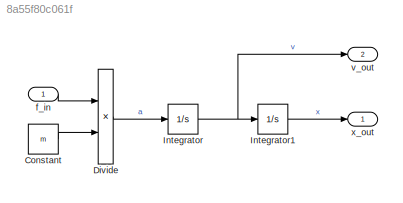
MODEL slx_8a55f80c061f
KIND model
CONFIG AbsTol = auto
CONFIG EnableMultiTasking = off
CONFIG FixedStep = 0.001
CONFIG InitFcn = load('orbit_dynamics_initial.mat')
CONFIG MaxStep = auto
CONFIG MinStep = auto
CONFIG RelTol = 1e-3
CONFIG SampleTimeConstraint = Unconstrained
CONFIG SolverName = FixedStepAuto
CONFIG StartTime = 0.0
CONFIG StopTime = 1000.0
BLOCK [Constant] Constant
  Value = m
BLOCK [Product] Divide
  Inputs = */
BLOCK [Integrator] Integrator
BLOCK [Integrator] Integrator1
BLOCK [Inport] f_in
  PortDimensions = 3
  Unit = N
BLOCK [Outport] v_out
  Port = 2
BLOCK [Outport] x_out
LINE Constant:1 -> Divide:2
LINE Divide:1 -> Integrator:1
LINE Integrator1:1 -> x_out:1
NET Integrator:1 -> Integrator1:1, v_out:1
LINE f_in:1 -> Divide:1
note: NET lines group one-source signal fan-out (src -> all destinations, sorted); 1:1 wires keep LINE
